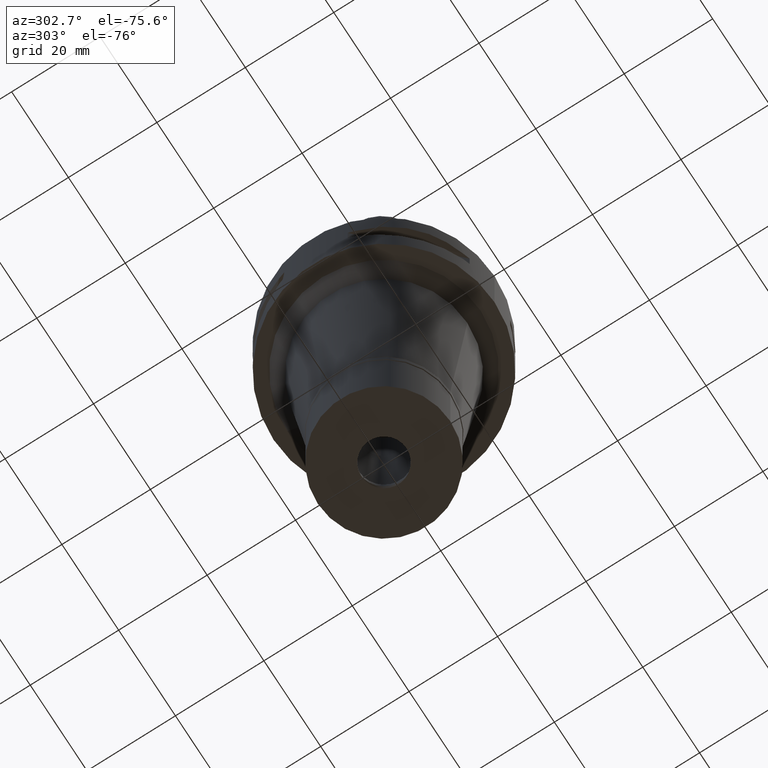
[diagram: clean part render]
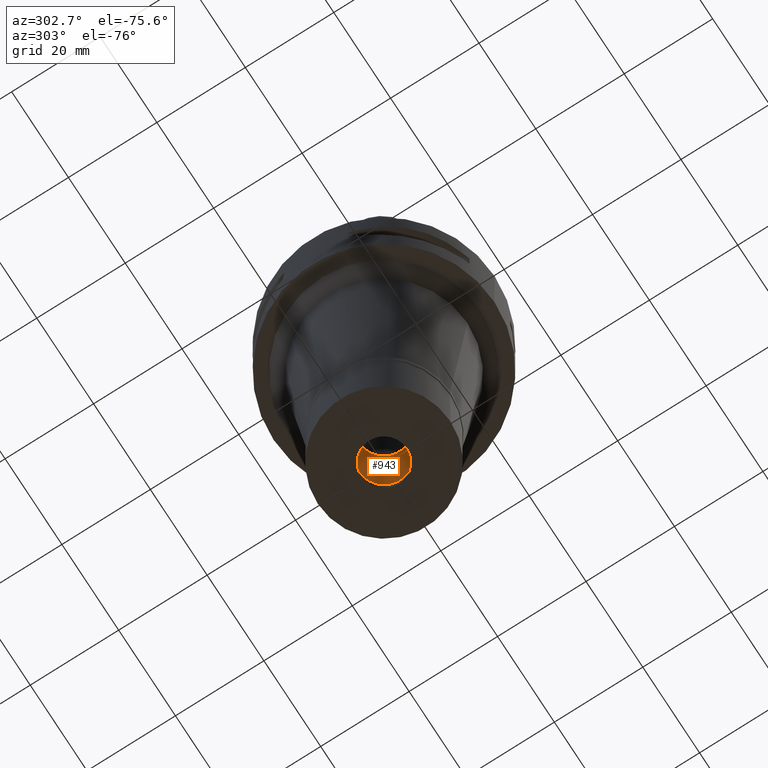
[diagram: same view with one face highlighted and labeled with its STEP entity id]
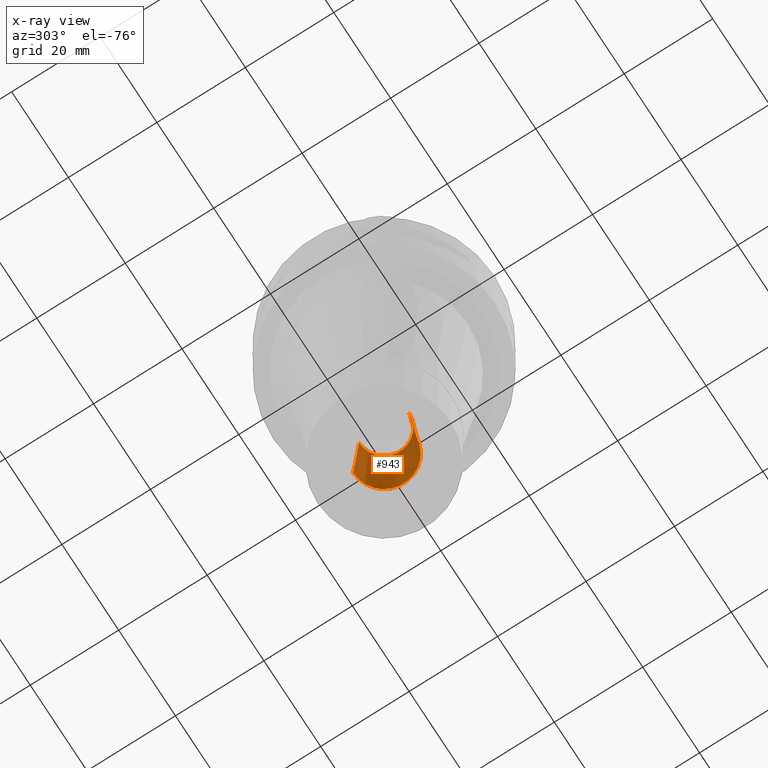
[diagram: x-ray of the same camera — body ghosted, the highlighted face saturated]
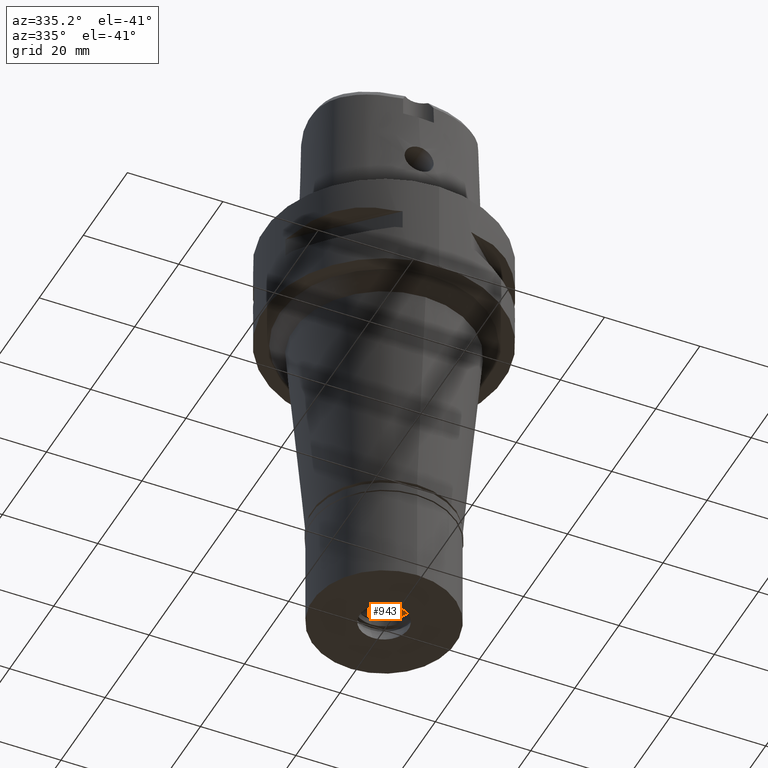
[diagram: same view with one face highlighted and labeled with its STEP entity id]
A machine part, auxiliary view. The second image highlights one B-rep face of the part: STEP entity #943.
The next image is the same camera in x-ray: the body ghosted, the highlighted face saturated — about 10% of this face is hidden behind the body in this view.
A second angle (auxiliary view) of the same face is appended — the face is thin or edge-on in the first view.
In plain terms, the highlighted conical surface has half-angle 4 deg.
Its self-contained STEP definition (entity closure, byte-faithful):
#304 = ORIENTED_EDGE ( 'NONE', *, *, #4372, .T. ) ;
#316 = CIRCLE ( 'NONE', #3291, 7.000000000000000000 ) ;
#420 = DIRECTION ( 'NONE',  ( 0.0000000000000000000, 0.0000000000000000000, -1.000000000000000000 ) ) ;
#780 = AXIS2_PLACEMENT_3D ( 'NONE', #4615, #420, #1171 ) ;
#839 = CONICAL_SURFACE ( 'NONE', #4207, 6.299999999999999822, 0.06981317007975955391 ) ;
#862 = CARTESIAN_POINT ( 'NONE',  ( 0.0000000000000000000, 0.0000000000000000000, -83.29999999999999716 ) ) ;
#911 = LINE ( 'NONE', #975, #4225 ) ;
#943 = ADVANCED_FACE ( 'NONE', ( #4013 ), #839, .F. ) ;
#948 = LINE ( 'NONE', #2386, #4476 ) ;
#975 = CARTESIAN_POINT ( 'NONE',  ( 0.0000000000000000000, 7.000000000000000000, -83.29999999999999716 ) ) ;
#999 = DIRECTION ( 'NONE',  ( 0.0000000000000000000, -0.06975647374412166646, 0.9975640502598245307 ) ) ;
#1083 = ORIENTED_EDGE ( 'NONE', *, *, #3415, .F. ) ;
#1160 = CARTESIAN_POINT ( 'NONE',  ( 0.0000000000000000000, -5.599999999999999645, -63.27906724059999277 ) ) ;
#1171 = DIRECTION ( 'NONE',  ( 0.0000000000000000000, 1.000000000000000000, 0.0000000000000000000 ) ) ;
#1427 = DIRECTION ( 'NONE',  ( 0.0000000000000000000, -1.000000000000000000, 0.0000000000000000000 ) ) ;
#1559 = DIRECTION ( 'NONE',  ( 0.0000000000000000000, 0.0000000000000000000, -1.000000000000000000 ) ) ;
#1660 = CIRCLE ( 'NONE', #780, 5.599999999999999645 ) ;
#1729 = DIRECTION ( 'NONE',  ( 0.0000000000000000000, 0.0000000000000000000, -1.000000000000000000 ) ) ;
#1809 = VERTEX_POINT ( 'NONE', #2949 ) ;
#1911 = VERTEX_POINT ( 'NONE', #2673 ) ;
#2298 = VERTEX_POINT ( 'NONE', #1160 ) ;
#2386 = CARTESIAN_POINT ( 'NONE',  ( 0.0000000000000000000, -7.000000000000000000, -83.29999999999999716 ) ) ;
#2527 = CARTESIAN_POINT ( 'NONE',  ( 0.0000000000000000000, 7.000000000000000000, -83.29999999999999716 ) ) ;
#2673 = CARTESIAN_POINT ( 'NONE',  ( 0.0000000000000000000, 5.599999999999999645, -63.27906724059999277 ) ) ;
#2949 = CARTESIAN_POINT ( 'NONE',  ( 0.0000000000000000000, -7.000000000000000000, -83.29999999999999716 ) ) ;
#3001 = EDGE_CURVE ( 'NONE', #3902, #1911, #911, .T. ) ;
#3291 = AXIS2_PLACEMENT_3D ( 'NONE', #862, #1559, #3755 ) ;
#3415 = EDGE_CURVE ( 'NONE', #1911, #2298, #1660, .T. ) ;
#3755 = DIRECTION ( 'NONE',  ( 0.0000000000000000000, 1.000000000000000000, 0.0000000000000000000 ) ) ;
#3842 = DIRECTION ( 'NONE',  ( 0.0000000000000000000, 0.06975647374412166646, 0.9975640502598245307 ) ) ;
#3902 = VERTEX_POINT ( 'NONE', #2527 ) ;
#4013 = FACE_OUTER_BOUND ( 'NONE', #4777, .T. ) ;
#4207 = AXIS2_PLACEMENT_3D ( 'NONE', #4749, #1729, #1427 ) ;
#4225 = VECTOR ( 'NONE', #999, 1000.000000000000114 ) ;
#4363 = ORIENTED_EDGE ( 'NONE', *, *, #4796, .T. ) ;
#4372 = EDGE_CURVE ( 'NONE', #3902, #1809, #316, .T. ) ;
#4424 = ORIENTED_EDGE ( 'NONE', *, *, #3001, .F. ) ;
#4476 = VECTOR ( 'NONE', #3842, 1000.000000000000114 ) ;
#4615 = CARTESIAN_POINT ( 'NONE',  ( 0.0000000000000000000, 0.0000000000000000000, -63.27906724059999277 ) ) ;
#4749 = CARTESIAN_POINT ( 'NONE',  ( 0.0000000000000000000, 0.0000000000000000000, -73.28953362029999141 ) ) ;
#4777 = EDGE_LOOP ( 'NONE', ( #304, #4363, #1083, #4424 ) ) ;
#4796 = EDGE_CURVE ( 'NONE', #1809, #2298, #948, .T. ) ;